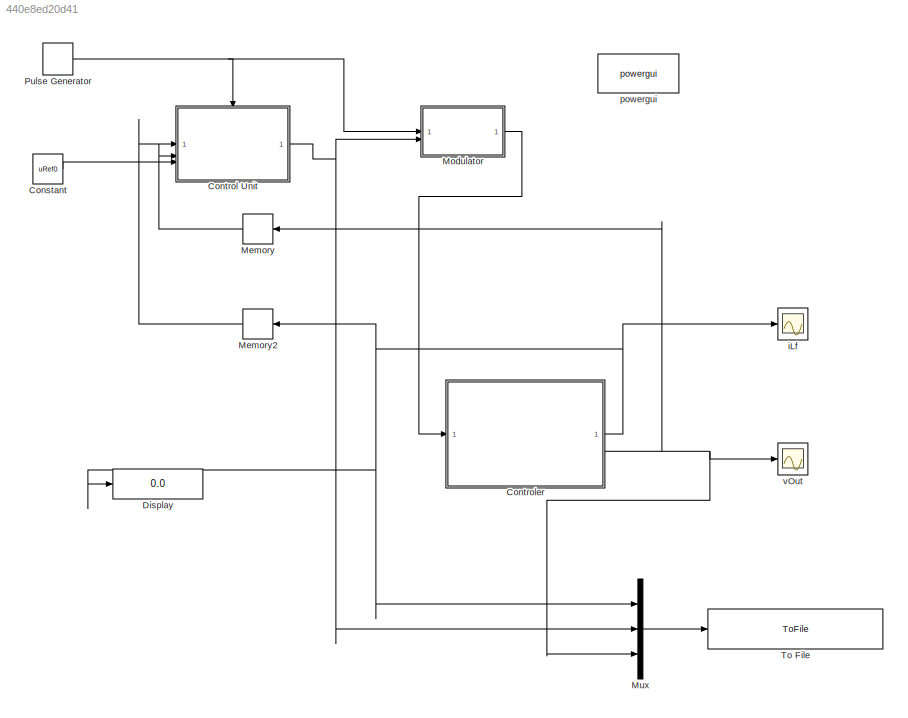
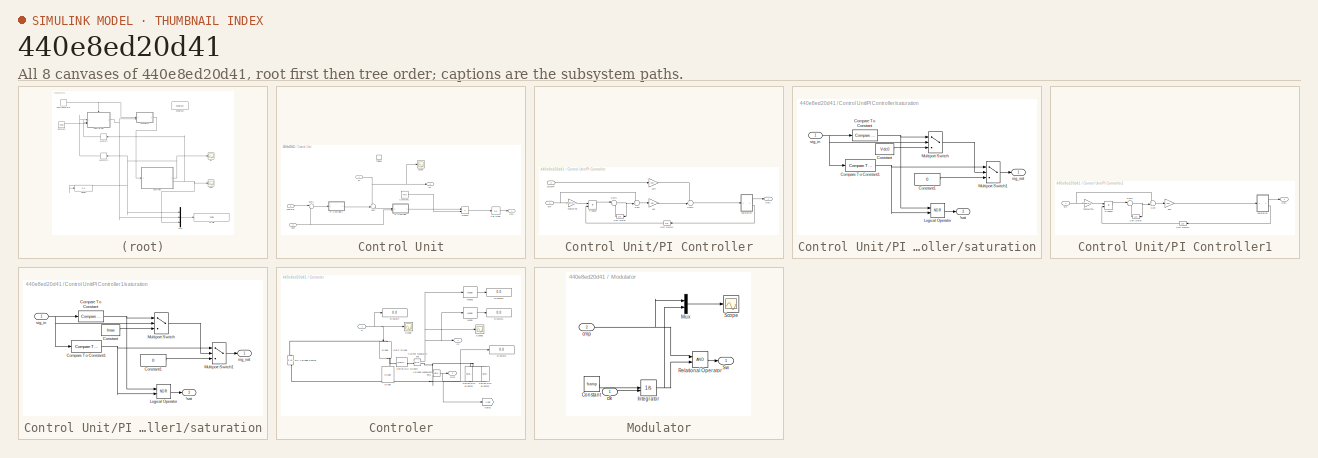
[diagram: thumbnail index - all 8 canvases of the model, root first then tree order]
MODEL slx_440e8ed20d41
KIND model
CONFIG AbsTol = auto
CONFIG EnableMultiTasking = off
CONFIG FixedStep = auto
CONFIG MaxStep = 5e-7
CONFIG MinStep = auto
CONFIG PreLoadFcn = RloadVal=10;
CONFIG RelTol = 1e-3
CONFIG SampleTimeConstraint = Unconstrained
CONFIG SolverName = ode23t
CONFIG StartTime = 0.0
CONFIG StopTime = 0.25
BLOCK [Constant] Constant
  Value = uRef0
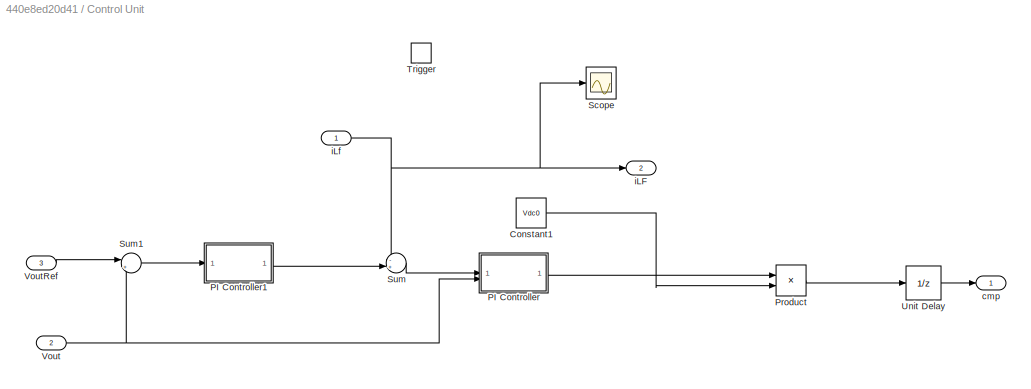
BLOCK [SubSystem] Control Unit
  TreatAsAtomicUnit = on
BLOCK [Constant] Control Unit/Constant1
  Value = Vdc0
BLOCK [SubSystem] Control Unit/PI Controller
BLOCK [Outport] Control Unit/PI Controller/Out1
  VectorParamsAs1DForOutWhenUnconnected = off
BLOCK [Product] Control Unit/PI Controller/Product
  OutDataTypeStr = double
  RndMeth = Zero
BLOCK [Sum] Control Unit/PI Controller/Sum
  Inputs = ++|
BLOCK [Sum] Control Unit/PI Controller/Sum1
  Inputs = |++
BLOCK [Sum] Control Unit/PI Controller/Sum4
  Inputs = ++|
BLOCK [Gain] Control Unit/PI Controller/Tsamp//Tni
  Gain = Tsamp/Tni
  OutDataTypeStr = double
BLOCK [UnitDelay] Control Unit/PI Controller/Unit Delay
  HasFrameUpgradeWarning = on
  SampleTime = -1
BLOCK [UnitDelay] Control Unit/PI Controller/Unit Delay1
  HasFrameUpgradeWarning = on
  SampleTime = -1
BLOCK [Inport] Control Unit/PI Controller/eIn
BLOCK [Gain] Control Unit/PI Controller/kpi
  Gain = kpi
BLOCK [Gain] Control Unit/PI Controller/kuff
  Gain = kuff
BLOCK [SubSystem] Control Unit/PI Controller/saturation
BLOCK [Outport] Control Unit/PI Controller/saturation/!sat
  Port = 2
  VectorParamsAs1DForOutWhenUnconnected = off
BLOCK [Reference] Control Unit/PI Controller/saturation/Compare To Constant  REF=simulink/Logic and Bit
Operations/Compare
To Constant
  SourceBlock = simulink/Logic and Bit\nOperations/Compare\nTo Constant
  SourceType = Compare To Constant
BLOCK [Reference] Control Unit/PI Controller/saturation/Compare To Constant1  REF=simulink/Logic and Bit
Operations/Compare
To Constant
  SourceBlock = simulink/Logic and Bit\nOperations/Compare\nTo Constant
  SourceType = Compare To Constant
BLOCK [Constant] Control Unit/PI Controller/saturation/Constant
  Value = Vdc0
BLOCK [Constant] Control Unit/PI Controller/saturation/Constant1
  Value = 0
BLOCK [Logic] Control Unit/PI Controller/saturation/Logical Operator
  AllPortsSameDT = off
  Operator = NOR
  OutDataTypeStr = boolean
BLOCK [MultiPortSwitch] Control Unit/PI Controller/saturation/Multiport Switch
  DataPortOrder = Zero-based contiguous
  InputSameDT = off
  Inputs = 2
  SaturateOnIntegerOverflow = off
  zeroidx = on
BLOCK [MultiPortSwitch] Control Unit/PI Controller/saturation/Multiport Switch1
  DataPortOrder = Zero-based contiguous
  InputSameDT = off
  Inputs = 2
  SaturateOnIntegerOverflow = off
  zeroidx = on
BLOCK [Inport] Control Unit/PI Controller/saturation/sig_in
BLOCK [Outport] Control Unit/PI Controller/saturation/sig_sat
  VectorParamsAs1DForOutWhenUnconnected = off
BLOCK [Inport] Control Unit/PI Controller/uOutFF
  Port = 2
BLOCK [SubSystem] Control Unit/PI Controller1
BLOCK [Outport] Control Unit/PI Controller1/Out1
  VectorParamsAs1DForOutWhenUnconnected = off
BLOCK [Product] Control Unit/PI Controller1/Product
  OutDataTypeStr = double
  RndMeth = Zero
BLOCK [Sum] Control Unit/PI Controller1/Sum
  Inputs = ++|
BLOCK [Sum] Control Unit/PI Controller1/Sum1
  Inputs = |++
BLOCK [Gain] Control Unit/PI Controller1/Tsamp//Tnu
  Gain = Tsamp/Tnu
  OutDataTypeStr = double
BLOCK [UnitDelay] Control Unit/PI Controller1/Unit Delay
  HasFrameUpgradeWarning = on
  SampleTime = -1
BLOCK [UnitDelay] Control Unit/PI Controller1/Unit Delay1
  HasFrameUpgradeWarning = on
  SampleTime = -1
BLOCK [Inport] Control Unit/PI Controller1/eIn
BLOCK [Gain] Control Unit/PI Controller1/kpu
  Gain = kpu
BLOCK [SubSystem] Control Unit/PI Controller1/saturation
BLOCK [Outport] Control Unit/PI Controller1/saturation/!sat
  Port = 2
  VectorParamsAs1DForOutWhenUnconnected = off
BLOCK [Reference] Control Unit/PI Controller1/saturation/Compare To Constant  REF=simulink/Logic and Bit
Operations/Compare
To Constant
  SourceBlock = simulink/Logic and Bit\nOperations/Compare\nTo Constant
  SourceType = Compare To Constant
BLOCK [Reference] Control Unit/PI Controller1/saturation/Compare To Constant1  REF=simulink/Logic and Bit
Operations/Compare
To Constant
  SourceBlock = simulink/Logic and Bit\nOperations/Compare\nTo Constant
  SourceType = Compare To Constant
BLOCK [Constant] Control Unit/PI Controller1/saturation/Constant
  Value = Imax
BLOCK [Constant] Control Unit/PI Controller1/saturation/Constant1
  Value = 0
BLOCK [Logic] Control Unit/PI Controller1/saturation/Logical Operator
  AllPortsSameDT = off
  Operator = NOR
  OutDataTypeStr = boolean
BLOCK [MultiPortSwitch] Control Unit/PI Controller1/saturation/Multiport Switch
  DataPortOrder = Zero-based contiguous
  InputSameDT = off
  Inputs = 2
  SaturateOnIntegerOverflow = off
  zeroidx = on
BLOCK [MultiPortSwitch] Control Unit/PI Controller1/saturation/Multiport Switch1
  DataPortOrder = Zero-based contiguous
  InputSameDT = off
  Inputs = 2
  SaturateOnIntegerOverflow = off
  zeroidx = on
BLOCK [Inport] Control Unit/PI Controller1/saturation/sig_in
BLOCK [Outport] Control Unit/PI Controller1/saturation/sig_sat
  VectorParamsAs1DForOutWhenUnconnected = off
BLOCK [Product] Control Unit/Product
  Inputs = */
BLOCK [Scope] Control Unit/Scope
  Floating = off
  NumInputPorts = 1
  ScopeSpecificationString = Simulink.scopes.TimeScopeBlockCfg('CurrentConfiguration', extmgr.ConfigurationSet(extmgr.Configuration('Core','General UI',true),extmgr.Configuration('Core','Source UI',true),extmgr.Configuration('Sources','WiredSimulink',true,'DataLoggingVariableName','ScopeData1'),extmgr.Configuration('Visuals','Time Domain',true,'SerializedDisplays',{struct('MinYLimReal','-10.00000','MaxYLimReal','14.52635','YL...<+1530ch>
BLOCK [Sum] Control Unit/Sum
  Inputs = -+|
BLOCK [Sum] Control Unit/Sum1
  Inputs = |+-
BLOCK [TriggerPort] Control Unit/Trigger
  StatesWhenEnabling = held
  VariantControl = (inherit)
BLOCK [UnitDelay] Control Unit/Unit Delay
  HasFrameUpgradeWarning = on
  InitialCondition = D0
  SampleTime = -1
BLOCK [Inport] Control Unit/Vout
  Port = 2
BLOCK [Inport] Control Unit/VoutRef
  Port = 3
BLOCK [Outport] Control Unit/cmp
BLOCK [Outport] Control Unit/iLF
  Port = 2
BLOCK [Inport] Control Unit/iLf
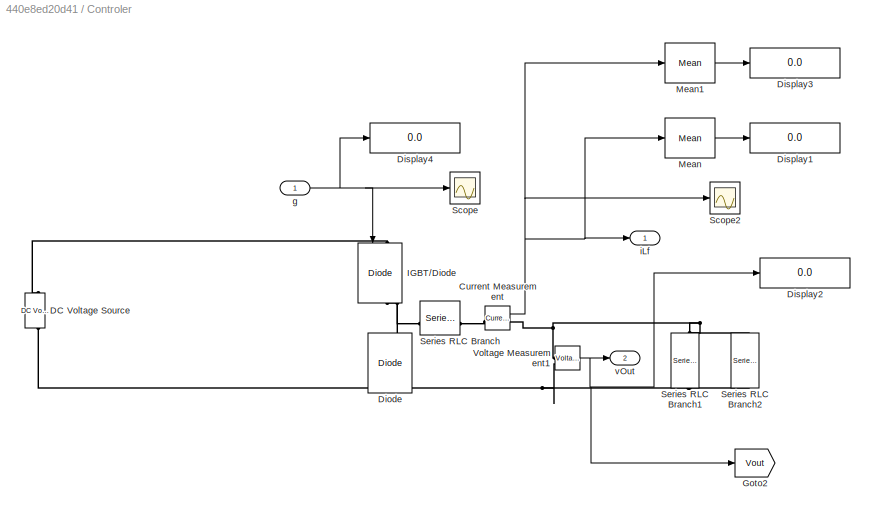
BLOCK [SubSystem] Controler
BLOCK [Reference] Controler/Current Measurement  REF=spsCurrentMeasurementLib/Current Measurement
  LibrarySourceBlock = sps_lib/Sensors and Measurements/Current Measurement
  SourceBlock = spsCurrentMeasurementLib/Current Measurement
  SourceType = Current Measurement
  UserDataPersistent = on
BLOCK [Reference] Controler/DC Voltage Source  REF=spsDCVoltageSourceLib/DC Voltage Source
  LibrarySourceBlock = sps_lib/Sources/DC Voltage Source
  SourceBlock = spsDCVoltageSourceLib/DC Voltage Source
  SourceType = DC Voltage Source
BLOCK [Reference] Controler/Diode  REF=spsDiodeLib/Diode
  LibrarySourceBlock = sps_lib/Power Electronics/Diode
  NameLocation = right
  SourceBlock = spsDiodeLib/Diode
  SourceType = Diode
BLOCK [Display] Controler/Display1
  Decimation = 1
BLOCK [Display] Controler/Display2
  Decimation = 1
BLOCK [Display] Controler/Display3
  Decimation = 1
BLOCK [Display] Controler/Display4
  Decimation = 1
BLOCK [Goto] Controler/Goto2
  GotoTag = Vout
  TagVisibility = global
BLOCK [Reference] Controler/IGBT//Diode  REF=spsIGBTDiodeLib/IGBT//Diode
  LibrarySourceBlock = sps_lib/Power Electronics/IGBT//Diode
  NameLocation = left
  SourceBlock = spsIGBTDiodeLib/IGBT//Diode
  SourceType = IGBT/Diode
BLOCK [Reference] Controler/Mean  REF=spsMeanLib/Mean
  LibrarySourceBlock = sps_lib/Sensors and Measurements/Mean
  SourceBlock = spsMeanLib/Mean
  SourceType = Mean
BLOCK [Reference] Controler/Mean1  REF=spsMeanLib/Mean
  LibrarySourceBlock = sps_lib/Sensors and Measurements/Mean
  SourceBlock = spsMeanLib/Mean
  SourceType = Mean
BLOCK [Scope] Controler/Scope
  Floating = off
  NumInputPorts = 1
  ScopeSpecificationString = Simulink.scopes.TimeScopeBlockCfg('CurrentConfiguration', extmgr.ConfigurationSet(extmgr.Configuration('Core','General UI',true),extmgr.Configuration('Core','Source UI',true),extmgr.Configuration('Sources','WiredSimulink',true,'DataLoggingVariableName','ScopeData1'),extmgr.Configuration('Visuals','Time Domain',true,'SerializedDisplays',{struct('MinYLimReal','-0.125','MaxYLimReal','1.125','YLabelRe...<+1485ch>
BLOCK [Scope] Controler/Scope2
  Floating = off
  NumInputPorts = 1
  ScopeSpecificationString = Simulink.scopes.TimeScopeBlockCfg('CurrentConfiguration', extmgr.ConfigurationSet(extmgr.Configuration('Core','General UI',true),extmgr.Configuration('Core','Source UI',true),extmgr.Configuration('Sources','WiredSimulink',true,'DataLoggingVariableName','ScopeData1'),extmgr.Configuration('Visuals','Time Domain',true,'SerializedDisplays',{struct('MinYLimReal','9.00000','MaxYLimReal','11.00000','YLab...<+1499ch>
BLOCK [Reference] Controler/Series RLC Branch  REF=spsSeriesRLCBranchLib/Series RLC Branch
  LibrarySourceBlock = sps_lib/Passives/Series RLC Branch
  SourceBlock = spsSeriesRLCBranchLib/Series RLC Branch
  SourceType = Series RLC Branch
BLOCK [Reference] Controler/Series RLC Branch1  REF=spsSeriesRLCBranchLib/Series RLC Branch
  LibrarySourceBlock = sps_lib/Passives/Series RLC Branch
  NameLocation = left
  SourceBlock = spsSeriesRLCBranchLib/Series RLC Branch
  SourceType = Series RLC Branch
BLOCK [Reference] Controler/Series RLC Branch2  REF=spsSeriesRLCBranchLib/Series RLC Branch
  LibrarySourceBlock = sps_lib/Passives/Series RLC Branch
  NameLocation = left
  SourceBlock = spsSeriesRLCBranchLib/Series RLC Branch
  SourceType = Series RLC Branch
BLOCK [Reference] Controler/Voltage Measurement1  REF=spsVoltageMeasurementLib/Voltage Measurement
  LibrarySourceBlock = sps_lib/Sensors and Measurements/Voltage Measurement
  SourceBlock = spsVoltageMeasurementLib/Voltage Measurement
  SourceType = Voltage Measurement
  UserDataPersistent = on
BLOCK [Inport] Controler/g
BLOCK [Outport] Controler/iLf
BLOCK [Outport] Controler/vOut
  Port = 2
BLOCK [Display] Display
  Decimation = 1
BLOCK [Memory] Memory
BLOCK [Memory] Memory2
BLOCK [SubSystem] Modulator
BLOCK [Constant] Modulator/Constant
  Value = fsamp
BLOCK [Integrator] Modulator/Integrator
  ExternalReset = rising
BLOCK [Mux] Modulator/Mux
  DisplayOption = bar
  Inputs = 2
BLOCK [RelationalOperator] Modulator/Relational Operator
  InputSameDT = off
  OutDataTypeStr = boolean
  RndMeth = Simplest
BLOCK [Scope] Modulator/Scope
  Floating = off
  NumInputPorts = 1
  ScopeSpecificationString = Simulink.scopes.TimeScopeBlockCfg('CurrentConfiguration', extmgr.ConfigurationSet(extmgr.Configuration('Core','General UI',true),extmgr.Configuration('Core','Source UI',true),extmgr.Configuration('Sources','WiredSimulink',true,'DataLoggingVariableName','ScopeData1'),extmgr.Configuration('Visuals','Time Domain',true,'SerializedDisplays',{struct('MinYLimReal','-0.02305','MaxYLimReal','1.03752','YLab...<+1419ch>
BLOCK [Outport] Modulator/Sw
BLOCK [Inport] Modulator/clk
BLOCK [Inport] Modulator/cmp
  Port = 2
BLOCK [Mux] Mux
  DisplayOption = bar
  Inputs = 3
BLOCK [DiscretePulseGenerator] Pulse Generator
  Period = Tsamp
  PulseType = Time based
  PulseWidth = 50
BLOCK [ToFile] To File
  Filename = buck_converter_Ilf.mat
  MatrixName = Ilf
  SaveFormat = Timeseries
BLOCK [Scope] iLf
  Floating = off
  NumInputPorts = 1
  ScopeSpecificationString = Simulink.scopes.TimeScopeBlockCfg('CurrentConfiguration', extmgr.ConfigurationSet(extmgr.Configuration('Core','General UI',true),extmgr.Configuration('Core','Source UI',true),extmgr.Configuration('Sources','WiredSimulink',true,'DataLoggingVariableName','ScopeData1'),extmgr.Configuration('Visuals','Time Domain',true,'SerializedDisplays',{struct('MinYLimReal','-21.53082','MaxYLimReal','29.14642','YL...<+1538ch>
BLOCK [Reference] powergui  REF=spspowerguiLib/powergui
  LibrarySourceBlock = sps_lib/powergui
  Priority = 1
  SourceBlock = spspowerguiLib/powergui
  SourceType = PSB option menu block
BLOCK [Scope] vOut
  Floating = off
  NumInputPorts = 1
  ScopeSpecificationString = Simulink.scopes.TimeScopeBlockCfg('CurrentConfiguration', extmgr.ConfigurationSet(extmgr.Configuration('Core','General UI',true),extmgr.Configuration('Core','Source UI',true),extmgr.Configuration('Sources','WiredSimulink',true),extmgr.Configuration('Visuals','Time Domain',true,'SerializedDisplays',{struct('MinYLimReal','-37.74132','MaxYLimReal','535.8016','YLabelReal','','MinYLimMag','0.00000','Ma...<+1526ch>
LINE Constant:1 -> Control Unit:3
LINE Control Unit/Constant1:1 -> Control Unit/Product:2
LINE Control Unit/PI Controller/Product:1 -> Control Unit/PI Controller/Sum1:1
NET Control Unit/PI Controller/Sum1:1 -> Control Unit/PI Controller/Sum:2, Control Unit/PI Controller/Unit Delay:1
LINE Control Unit/PI Controller/Sum4:1 -> Control Unit/PI Controller/saturation:1
LINE Control Unit/PI Controller/Sum:1 -> Control Unit/PI Controller/kpi:1
LINE Control Unit/PI Controller/Tsamp//Tni:1 -> Control Unit/PI Controller/Product:1
LINE Control Unit/PI Controller/Unit Delay1:1 -> Control Unit/PI Controller/Product:2
LINE Control Unit/PI Controller/Unit Delay:1 -> Control Unit/PI Controller/Sum1:2
NET Control Unit/PI Controller/eIn:1 -> Control Unit/PI Controller/Sum:1, Control Unit/PI Controller/Tsamp//Tni:1
LINE Control Unit/PI Controller/kpi:1 -> Control Unit/PI Controller/Sum4:2
LINE Control Unit/PI Controller/kuff:1 -> Control Unit/PI Controller/Sum4:1
NET Control Unit/PI Controller/saturation/Compare To Constant1:1 -> Control Unit/PI Controller/saturation/Logical Operator:2, Control Unit/PI Controller/saturation/Multiport Switch1:1
NET Control Unit/PI Controller/saturation/Compare To Constant:1 -> Control Unit/PI Controller/saturation/Logical Operator:1, Control Unit/PI Controller/saturation/Multiport Switch:1
LINE Control Unit/PI Controller/saturation/Constant1:1 -> Control Unit/PI Controller/saturation/Multiport Switch1:3
LINE Control Unit/PI Controller/saturation/Constant:1 -> Control Unit/PI Controller/saturation/Multiport Switch:3
LINE Control Unit/PI Controller/saturation/Logical Operator:1 -> Control Unit/PI Controller/saturation/!sat:1
LINE Control Unit/PI Controller/saturation/Multiport Switch1:1 -> Control Unit/PI Controller/saturation/sig_sat:1
LINE Control Unit/PI Controller/saturation/Multiport Switch:1 -> Control Unit/PI Controller/saturation/Multiport Switch1:2
NET Control Unit/PI Controller/saturation/sig_in:1 -> Control Unit/PI Controller/saturation/Compare To Constant1:1, Control Unit/PI Controller/saturation/Compare To Constant:1, Control Unit/PI Controller/saturation/Multiport Switch:2
LINE Control Unit/PI Controller/saturation:1 -> Control Unit/PI Controller/Out1:1
LINE Control Unit/PI Controller/saturation:2 -> Control Unit/PI Controller/Unit Delay1:1
LINE Control Unit/PI Controller/uOutFF:1 -> Control Unit/PI Controller/kuff:1
LINE Control Unit/PI Controller1/Product:1 -> Control Unit/PI Controller1/Sum1:1
NET Control Unit/PI Controller1/Sum1:1 -> Control Unit/PI Controller1/Sum:2, Control Unit/PI Controller1/Unit Delay:1
LINE Control Unit/PI Controller1/Sum:1 -> Control Unit/PI Controller1/kpu:1
LINE Control Unit/PI Controller1/Tsamp//Tnu:1 -> Control Unit/PI Controller1/Product:1
LINE Control Unit/PI Controller1/Unit Delay1:1 -> Control Unit/PI Controller1/Product:2
LINE Control Unit/PI Controller1/Unit Delay:1 -> Control Unit/PI Controller1/Sum1:2
NET Control Unit/PI Controller1/eIn:1 -> Control Unit/PI Controller1/Sum:1, Control Unit/PI Controller1/Tsamp//Tnu:1
LINE Control Unit/PI Controller1/kpu:1 -> Control Unit/PI Controller1/saturation:1
NET Control Unit/PI Controller1/saturation/Compare To Constant1:1 -> Control Unit/PI Controller1/saturation/Logical Operator:2, Control Unit/PI Controller1/saturation/Multiport Switch1:1
NET Control Unit/PI Controller1/saturation/Compare To Constant:1 -> Control Unit/PI Controller1/saturation/Logical Operator:1, Control Unit/PI Controller1/saturation/Multiport Switch:1
LINE Control Unit/PI Controller1/saturation/Constant1:1 -> Control Unit/PI Controller1/saturation/Multiport Switch1:3
LINE Control Unit/PI Controller1/saturation/Constant:1 -> Control Unit/PI Controller1/saturation/Multiport Switch:3
LINE Control Unit/PI Controller1/saturation/Logical Operator:1 -> Control Unit/PI Controller1/saturation/!sat:1
LINE Control Unit/PI Controller1/saturation/Multiport Switch1:1 -> Control Unit/PI Controller1/saturation/sig_sat:1
LINE Control Unit/PI Controller1/saturation/Multiport Switch:1 -> Control Unit/PI Controller1/saturation/Multiport Switch1:2
NET Control Unit/PI Controller1/saturation/sig_in:1 -> Control Unit/PI Controller1/saturation/Compare To Constant1:1, Control Unit/PI Controller1/saturation/Compare To Constant:1, Control Unit/PI Controller1/saturation/Multiport Switch:2
LINE Control Unit/PI Controller1/saturation:1 -> Control Unit/PI Controller1/Out1:1
LINE Control Unit/PI Controller1/saturation:2 -> Control Unit/PI Controller1/Unit Delay1:1
LINE Control Unit/PI Controller1:1 -> Control Unit/Sum:2
LINE Control Unit/PI Controller:1 -> Control Unit/Product:1
LINE Control Unit/Product:1 -> Control Unit/Unit Delay:1
LINE Control Unit/Sum1:1 -> Control Unit/PI Controller1:1
LINE Control Unit/Sum:1 -> Control Unit/PI Controller:1
LINE Control Unit/Unit Delay:1 -> Control Unit/cmp:1
NET Control Unit/Vout:1 -> Control Unit/PI Controller:2, Control Unit/Sum1:2
LINE Control Unit/VoutRef:1 -> Control Unit/Sum1:1
NET Control Unit/iLf:1 -> Control Unit/Scope:1, Control Unit/Sum:1, Control Unit/iLF:1
NET Control Unit:1 -> Modulator:2, Mux:2
NET Controler/Current Measurement:1 -> Controler/Mean1:1, Controler/Mean:1, Controler/Scope2:1, Controler/iLf:1
LINE Controler/Mean1:1 -> Controler/Display3:1
LINE Controler/Mean:1 -> Controler/Display1:1
NET Controler/Voltage Measurement1:1 -> Controler/Display2:1, Controler/Goto2:1, Controler/vOut:1
NET Controler/g:1 -> Controler/Display4:1, Controler/IGBT//Diode:1, Controler/Scope:1
NET Controler:1 -> Display:1, Memory2:1, Mux:1, iLf:1
NET Controler:2 -> Memory:1, Mux:3, vOut:1
LINE Memory2:1 -> Control Unit:1
LINE Memory:1 -> Control Unit:2
LINE Modulator/Constant:1 -> Modulator/Integrator:1
NET Modulator/Integrator:1 -> Modulator/Mux:2, Modulator/Relational Operator:2
LINE Modulator/Mux:1 -> Modulator/Scope:1
LINE Modulator/Relational Operator:1 -> Modulator/Sw:1
LINE Modulator/clk:1 -> Modulator/Integrator:2
NET Modulator/cmp:1 -> Modulator/Mux:1, Modulator/Relational Operator:1
LINE Modulator:1 -> Controler:1
LINE Mux:1 -> To File:1
NET Pulse Generator:1 -> Control Unit:trigger, Modulator:1
PLINE Controler/Current Measurement:LConn1 -- Controler/Series RLC Branch:RConn1
PNET net1: Controler/Current Measurement:RConn1 -- Controler/Series RLC Branch1:LConn1 -- Controler/Series RLC Branch2:LConn1 -- Controler/Voltage Measurement1:LConn1
PNET net2: Controler/DC Voltage Source:LConn1 -- Controler/Diode:LConn1 -- Controler/Series RLC Branch1:RConn1 -- Controler/Series RLC Branch2:RConn1 -- Controler/Voltage Measurement1:LConn2
PLINE Controler/DC Voltage Source:RConn1 -- Controler/IGBT//Diode:LConn1
PNET net3: Controler/Diode:RConn1 -- Controler/IGBT//Diode:RConn1 -- Controler/Series RLC Branch:LConn1
note: NET lines group one-source signal fan-out (src -> all destinations, sorted); 1:1 wires keep LINE; PNET lines group multi-terminal physical nets as a canonical sorted terminal list (undirected conserving connections); 2-terminal nets keep the pairwise PLINE form
